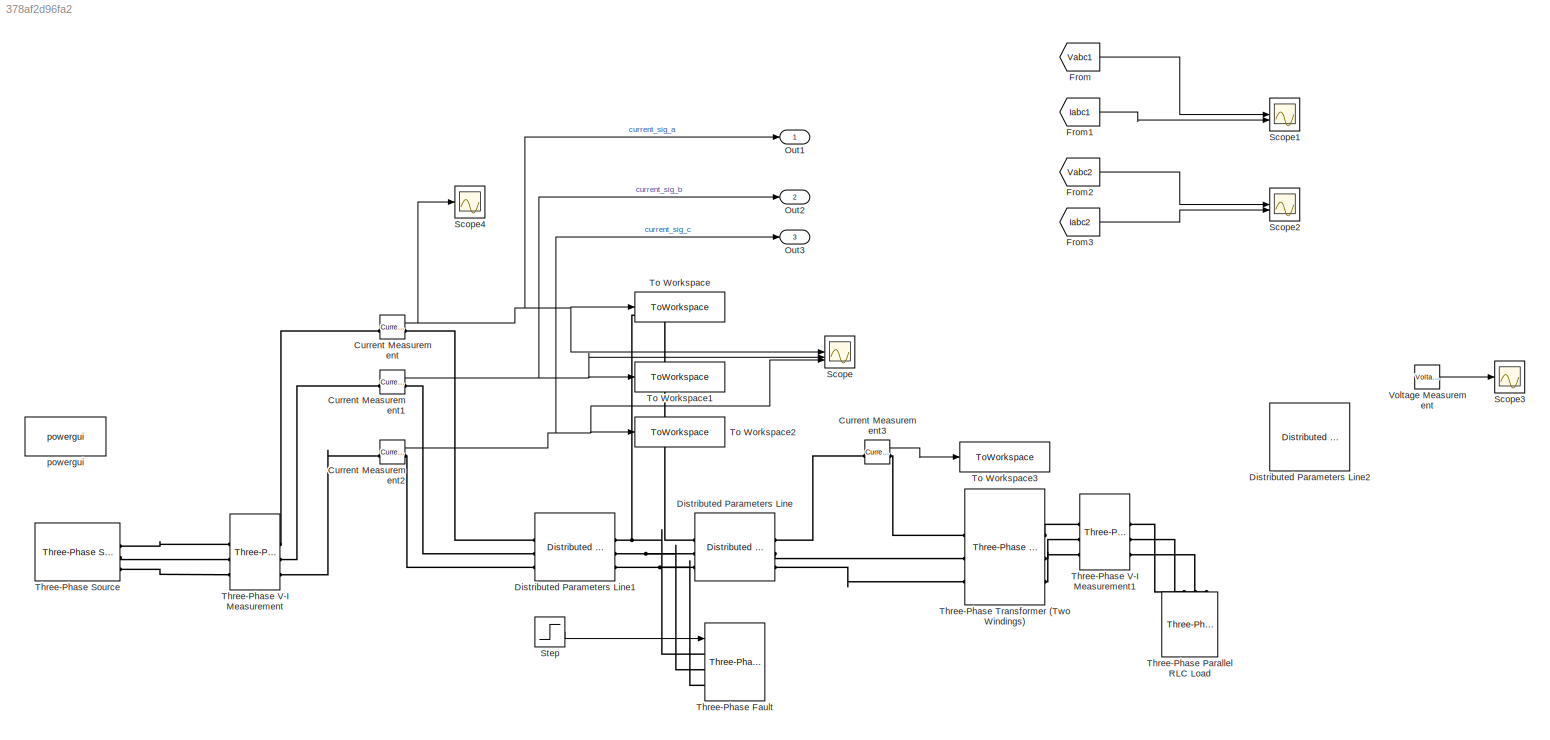
MODEL slx_378af2d96fa2
KIND model
CONFIG AbsTol = auto
CONFIG EnableMultiTasking = off
CONFIG FixedStep = auto
CONFIG MaxStep = auto
CONFIG MinStep = auto
CONFIG RelTol = 1e-3
CONFIG SampleTimeConstraint = Unconstrained
CONFIG SolverName = VariableStepAuto
CONFIG StartTime = 0.0
CONFIG StopTime = 0.15
WORKSPACE source: mxarray member
WORKSPACE y = 0.001
BLOCK [Reference] Current Measurement  REF=spsCurrentMeasurementLib/Current Measurement
  LibrarySourceBlock = sps_lib/Sensors and Measurements/Current Measurement
  SourceBlock = spsCurrentMeasurementLib/Current Measurement
  SourceType = Current Measurement
  UserDataPersistent = on
BLOCK [Reference] Current Measurement1  REF=spsCurrentMeasurementLib/Current Measurement
  LibrarySourceBlock = sps_lib/Sensors and Measurements/Current Measurement
  SourceBlock = spsCurrentMeasurementLib/Current Measurement
  SourceType = Current Measurement
  UserDataPersistent = on
BLOCK [Reference] Current Measurement2  REF=spsCurrentMeasurementLib/Current Measurement
  LibrarySourceBlock = sps_lib/Sensors and Measurements/Current Measurement
  SourceBlock = spsCurrentMeasurementLib/Current Measurement
  SourceType = Current Measurement
  UserDataPersistent = on
BLOCK [Reference] Current Measurement3  REF=spsCurrentMeasurementLib/Current Measurement
  LibrarySourceBlock = sps_lib/Sensors and Measurements/Current Measurement
  SourceBlock = spsCurrentMeasurementLib/Current Measurement
  SourceType = Current Measurement
  UserDataPersistent = on
BLOCK [Reference] Distributed Parameters Line  REF=spsDistributedParametersLineLib/Distributed Parameters Line
  LibrarySourceBlock = sps_lib/Power Grid Elements/Distributed Parameters Line
  SourceBlock = spsDistributedParametersLineLib/Distributed Parameters Line
  SourceType = Distributed Parameters Line
BLOCK [Reference] Distributed Parameters Line1  REF=spsDistributedParametersLineLib/Distributed Parameters Line
  LibrarySourceBlock = sps_lib/Power Grid Elements/Distributed Parameters Line
  SourceBlock = spsDistributedParametersLineLib/Distributed Parameters Line
  SourceType = Distributed Parameters Line
BLOCK [Reference] Distributed Parameters Line2  REF=spsDistributedParametersLineLib/Distributed Parameters Line
  Commented = on
  LibrarySourceBlock = sps_lib/Power Grid Elements/Distributed Parameters Line
  SourceBlock = spsDistributedParametersLineLib/Distributed Parameters Line
  SourceType = Distributed Parameters Line
BLOCK [From] From
  GotoTag = Vabc1
  TagVisibility = global
BLOCK [From] From1
  GotoTag = Iabc1
  TagVisibility = global
BLOCK [From] From2
  GotoTag = Vabc2
  TagVisibility = global
BLOCK [From] From3
  GotoTag = Iabc2
  TagVisibility = global
BLOCK [Outport] Out1
  IconDisplay = Signal name
BLOCK [Outport] Out2
  IconDisplay = Signal name
  Port = 2
BLOCK [Outport] Out3
  IconDisplay = Signal name
  Port = 3
BLOCK [Scope] Scope
  Floating = off
  NumInputPorts = 3
  ScopeSpecificationString = Simulink.scopes.TimeScopeBlockCfg('CurrentConfiguration', extmgr.ConfigurationSet(extmgr.Configuration('Core','General UI',true),extmgr.Configuration('Core','Source UI',true),extmgr.Configuration('Sources','WiredSimulink',true),extmgr.Configuration('Visuals','Time Domain',true,'SerializedDisplays',{struct('MinYLimReal','-1052.71208','MaxYLimReal','726.49708','YLabelReal','','MinYLimMag','  0.00000...<+1511ch>
BLOCK [Scope] Scope1
  Floating = off
  NumInputPorts = 2
  ScopeSpecificationString = Simulink.scopes.TimeScopeBlockCfg('CurrentConfiguration', extmgr.ConfigurationSet(extmgr.Configuration('Core','General UI',true),extmgr.Configuration('Core','Source UI',true),extmgr.Configuration('Sources','WiredSimulink',true,'DataLoggingVariableName','ScopeData1'),extmgr.Configuration('Visuals','Time Domain',true),extmgr.Configuration('Tools','Plot Navigation',true),extmgr.Configuration('Tools',...<+100ch>
BLOCK [Scope] Scope2
  Floating = off
  NumInputPorts = 2
  ScopeSpecificationString = Simulink.scopes.TimeScopeBlockCfg('CurrentConfiguration', extmgr.ConfigurationSet(extmgr.Configuration('Core','General UI',true),extmgr.Configuration('Core','Source UI',true),extmgr.Configuration('Sources','WiredSimulink',true,'DataLoggingVariableName','ScopeData2'),extmgr.Configuration('Visuals','Time Domain',true),extmgr.Configuration('Tools','Plot Navigation',true),extmgr.Configuration('Tools',...<+100ch>
BLOCK [Scope] Scope3
  Floating = off
  NumInputPorts = 1
  ScopeSpecificationString = Simulink.scopes.TimeScopeBlockCfg('CurrentConfiguration', extmgr.ConfigurationSet(extmgr.Configuration('Core','General UI',true),extmgr.Configuration('Core','Source UI',true),extmgr.Configuration('Sources','WiredSimulink',true,'DataLoggingVariableName','ScopeData1'),extmgr.Configuration('Visuals','Time Domain',true,'SerializedDisplays',{struct('MinYLimReal','-19018.95812','MaxYLimReal','19031.1163...<+1580ch>
BLOCK [Scope] Scope4
  Floating = off
  NumInputPorts = 1
  ScopeSpecificationString = Simulink.scopes.TimeScopeBlockCfg('CurrentConfiguration', extmgr.ConfigurationSet(extmgr.Configuration('Core','General UI',true),extmgr.Configuration('Core','Source UI',true),extmgr.Configuration('Sources','WiredSimulink',true,'DataLoggingVariableName','ScopeData2'),extmgr.Configuration('Visuals','Time Domain',true),extmgr.Configuration('Tools','Plot Navigation',true),extmgr.Configuration('Tools',...<+40ch>
BLOCK [Step] Step
  SampleTime = 0
  Time = t
BLOCK [Reference] Three-Phase Fault  REF=spsThreePhaseFaultLib/Three-Phase Fault
  LibrarySourceBlock = sps_lib/Power Grid Elements/Three-Phase Fault
  NameLocation = right
  SourceBlock = spsThreePhaseFaultLib/Three-Phase Fault
  SourceType = Three-Phase Fault
BLOCK [Reference] Three-Phase Parallel RLC Load  REF=spsThreePhaseParallelRLCLoadLib/Three-Phase
Parallel RLC Load
  AttributesFormatString = \n
  LibrarySourceBlock = sps_lib/Passives/Three-Phase\nParallel RLC Load
  SourceBlock = spsThreePhaseParallelRLCLoadLib/Three-Phase\nParallel RLC Load
  SourceType = Three-Phase Parallel RLC Load
BLOCK [Reference] Three-Phase Source  REF=spsThreePhaseSourceLib/Three-Phase Source
  LibrarySourceBlock = sps_lib/Sources/Three-Phase Source
  SourceBlock = spsThreePhaseSourceLib/Three-Phase Source
  SourceType = Three-Phase Source
BLOCK [Reference] Three-Phase Transformer (Two Windings)  REF=spsThreePhaseTransformerTwoWindingsLib/Three-Phase
Transformer
(Two Windings)
  LibrarySourceBlock = sps_lib/Power Grid Elements/Three-Phase\nTransformer\n(Two Windings)
  SourceBlock = spsThreePhaseTransformerTwoWindingsLib/Three-Phase\nTransformer\n(Two Windings)
  SourceType = Three-Phase Transformer (Two Windings)
BLOCK [Reference] Three-Phase V-I Measurement  REF=spsThreePhaseVIMeasurementLib/Three-Phase
V-I Measurement
  LibrarySourceBlock = sps_lib/Sensors and Measurements/Three-Phase\nV-I Measurement
  SourceBlock = spsThreePhaseVIMeasurementLib/Three-Phase\nV-I Measurement
  SourceType = Three-Phase VI Measurement
BLOCK [Reference] Three-Phase V-I Measurement1  REF=spsThreePhaseVIMeasurementLib/Three-Phase
V-I Measurement
  LibrarySourceBlock = sps_lib/Sensors and Measurements/Three-Phase\nV-I Measurement
  SourceBlock = spsThreePhaseVIMeasurementLib/Three-Phase\nV-I Measurement
  SourceType = Three-Phase VI Measurement
BLOCK [ToWorkspace] To Workspace
  FixptAsFi = on
  MaxDataPoints = inf
  SampleTime = -1
  SaveFormat = Structure With Time
  VariableName = current1
BLOCK [ToWorkspace] To Workspace1
  FixptAsFi = on
  MaxDataPoints = inf
  SampleTime = -1
  SaveFormat = Structure With Time
  VariableName = current2
BLOCK [ToWorkspace] To Workspace2
  FixptAsFi = on
  MaxDataPoints = inf
  SampleTime = -1
  SaveFormat = Structure With Time
  VariableName = current3
BLOCK [ToWorkspace] To Workspace3
  FixptAsFi = on
  MaxDataPoints = inf
  SampleTime = -1
  SaveFormat = Structure With Time
  VariableName = current4
BLOCK [Reference] Voltage Measurement  REF=spsVoltageMeasurementLib/Voltage Measurement
  LibrarySourceBlock = sps_lib/Sensors and Measurements/Voltage Measurement
  SourceBlock = spsVoltageMeasurementLib/Voltage Measurement
  SourceType = Voltage Measurement
  UserDataPersistent = on
BLOCK [Reference] powergui  REF=spspowerguiLib/powergui
  Priority = 1
  SourceBlock = spspowerguiLib/powergui
  SourceType = PSB option menu block
NET Current Measurement1:1 -> Out2:1, Scope:2, To Workspace1:1
NET Current Measurement2:1 -> Out3:1, Scope:3, To Workspace2:1
LINE Current Measurement3:1 -> To Workspace3:1
NET Current Measurement:1 -> Out1:1, Scope4:1, Scope:1, To Workspace:1
LINE From1:1 -> Scope1:2
LINE From2:1 -> Scope2:1
LINE From3:1 -> Scope2:2
LINE From:1 -> Scope1:1
LINE Step:1 -> Three-Phase Fault:1
LINE Voltage Measurement:1 -> Scope3:1
PLINE Current Measurement1:LConn1 -- Three-Phase V-I Measurement:RConn2
PLINE Current Measurement1:RConn1 -- Distributed Parameters Line1:LConn2
PLINE Current Measurement2:LConn1 -- Three-Phase V-I Measurement:RConn3
PLINE Current Measurement2:RConn1 -- Distributed Parameters Line1:LConn3
PLINE Current Measurement3:LConn1 -- Distributed Parameters Line:RConn1
PLINE Current Measurement3:RConn1 -- Three-Phase Transformer (Two Windings):LConn1
PLINE Current Measurement:LConn1 -- Three-Phase V-I Measurement:RConn1
PLINE Current Measurement:RConn1 -- Distributed Parameters Line1:LConn1
PNET net1: Distributed Parameters Line1:RConn1 -- Distributed Parameters Line:LConn1 -- Three-Phase Fault:LConn1
PNET net2: Distributed Parameters Line1:RConn2 -- Distributed Parameters Line:LConn2 -- Three-Phase Fault:LConn2
PNET net3: Distributed Parameters Line1:RConn3 -- Distributed Parameters Line:LConn3 -- Three-Phase Fault:LConn3
PLINE Distributed Parameters Line:RConn2 -- Three-Phase Transformer (Two Windings):LConn2
PLINE Distributed Parameters Line:RConn3 -- Three-Phase Transformer (Two Windings):LConn3
PLINE Three-Phase Parallel RLC Load:LConn1 -- Three-Phase V-I Measurement1:RConn1
PLINE Three-Phase Parallel RLC Load:LConn2 -- Three-Phase V-I Measurement1:RConn2
PLINE Three-Phase Parallel RLC Load:LConn3 -- Three-Phase V-I Measurement1:RConn3
PLINE Three-Phase Source:RConn1 -- Three-Phase V-I Measurement:LConn1
PLINE Three-Phase Source:RConn2 -- Three-Phase V-I Measurement:LConn2
PLINE Three-Phase Source:RConn3 -- Three-Phase V-I Measurement:LConn3
PLINE Three-Phase Transformer (Two Windings):RConn1 -- Three-Phase V-I Measurement1:LConn1
PLINE Three-Phase Transformer (Two Windings):RConn2 -- Three-Phase V-I Measurement1:LConn2
PLINE Three-Phase Transformer (Two Windings):RConn3 -- Three-Phase V-I Measurement1:LConn3
note: NET lines group one-source signal fan-out (src -> all destinations, sorted); 1:1 wires keep LINE; PNET lines group multi-terminal physical nets as a canonical sorted terminal list (undirected conserving connections); 2-terminal nets keep the pairwise PLINE form
